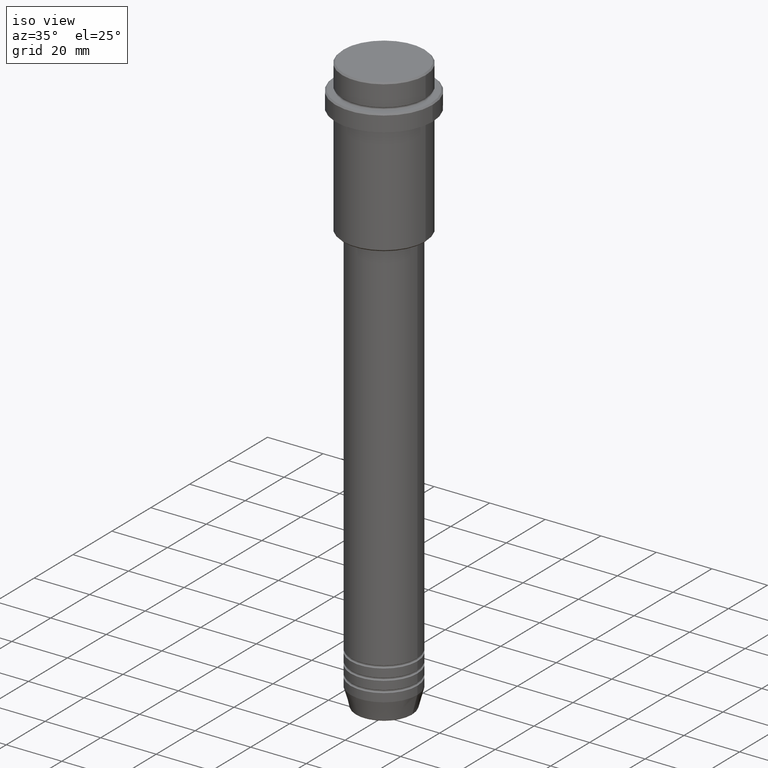
[diagram: clean part render]
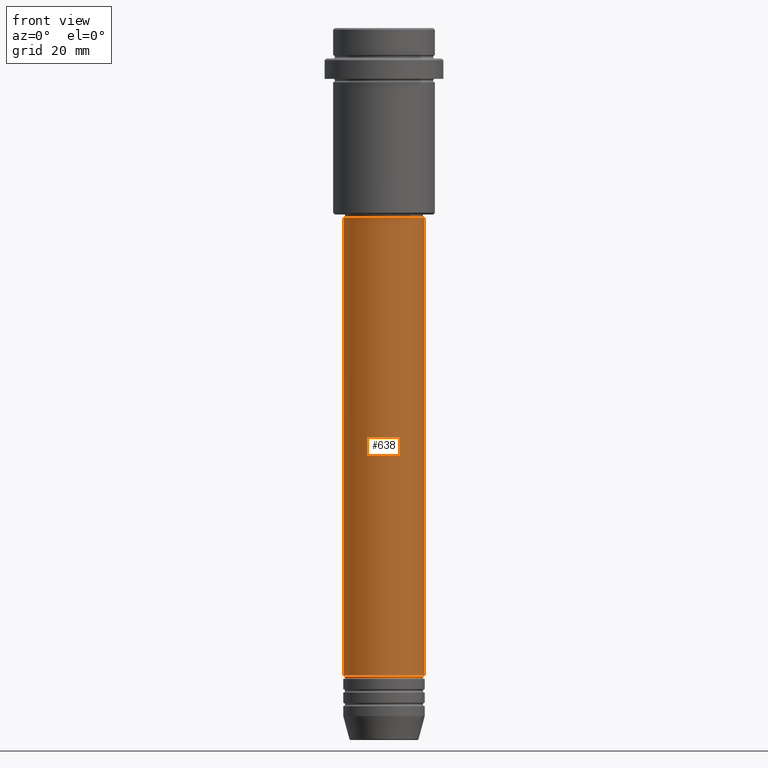
[diagram: tour spotlight — one face highlighted and labeled with its STEP entity id]
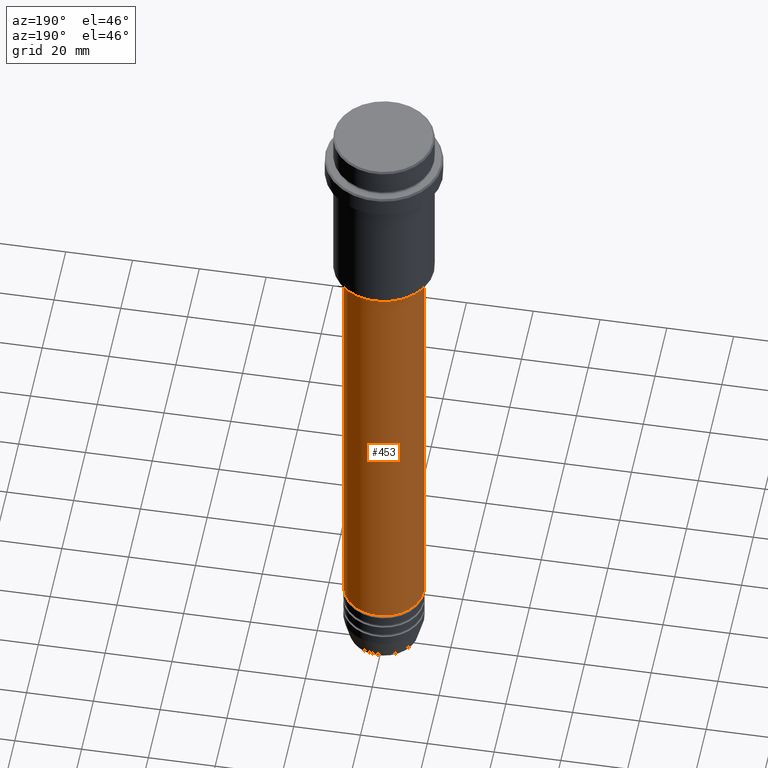
[diagram: tour spotlight — one face highlighted and labeled with its STEP entity id]
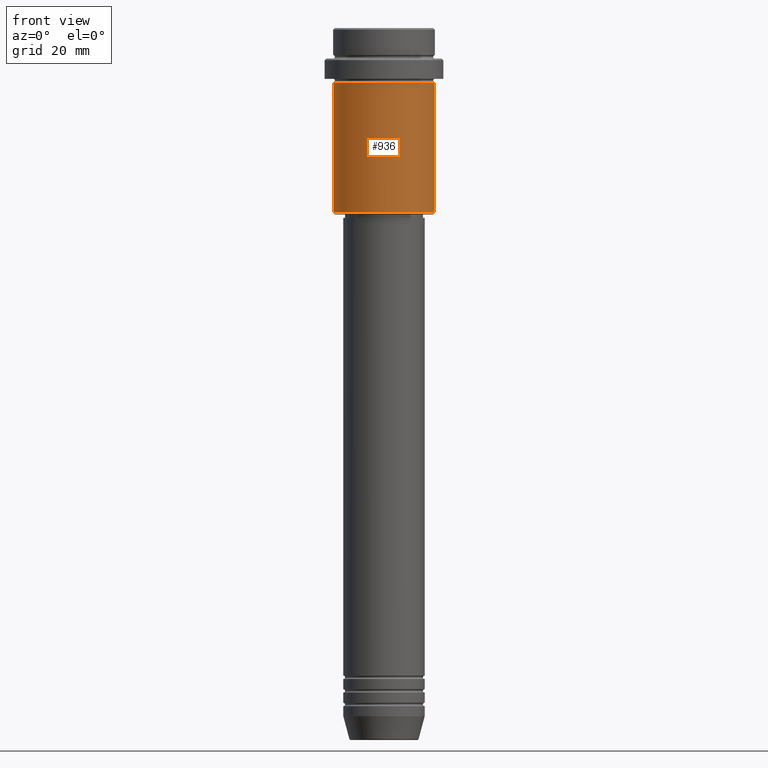
[diagram: tour spotlight — one face highlighted and labeled with its STEP entity id]
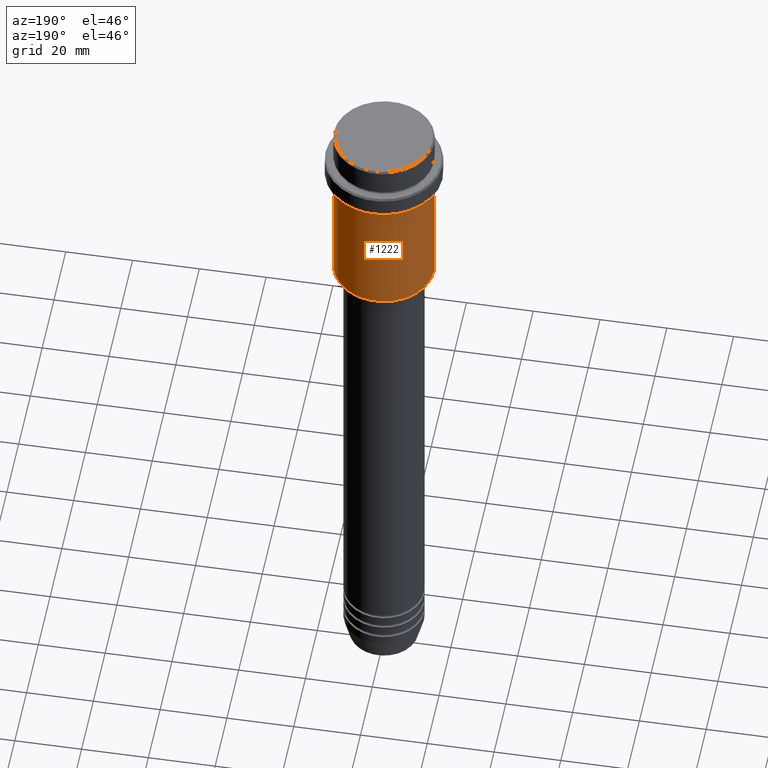
[diagram: tour spotlight — one face highlighted and labeled with its STEP entity id]
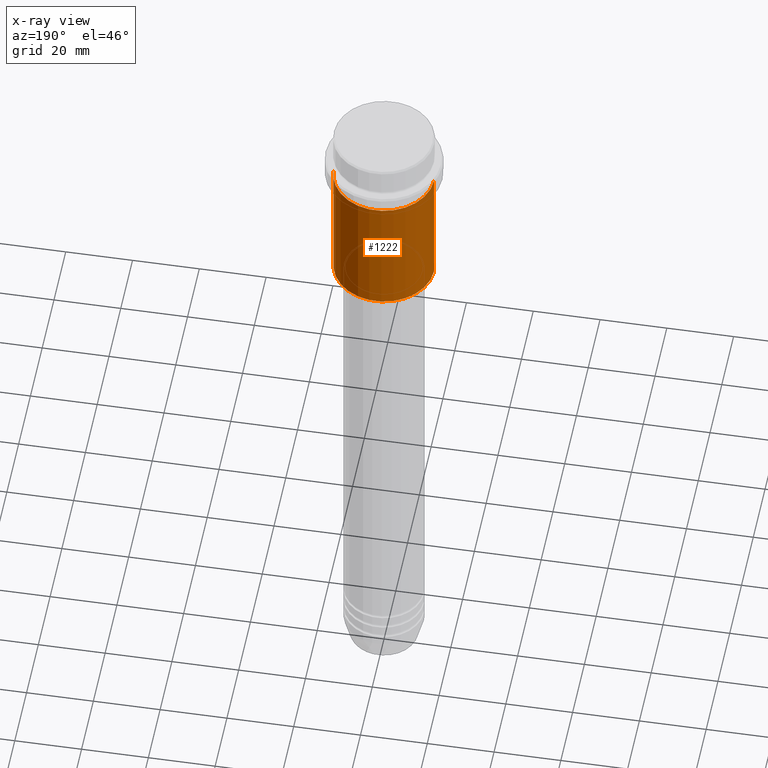
[diagram: x-ray of the same camera — body ghosted, this tour face saturated]
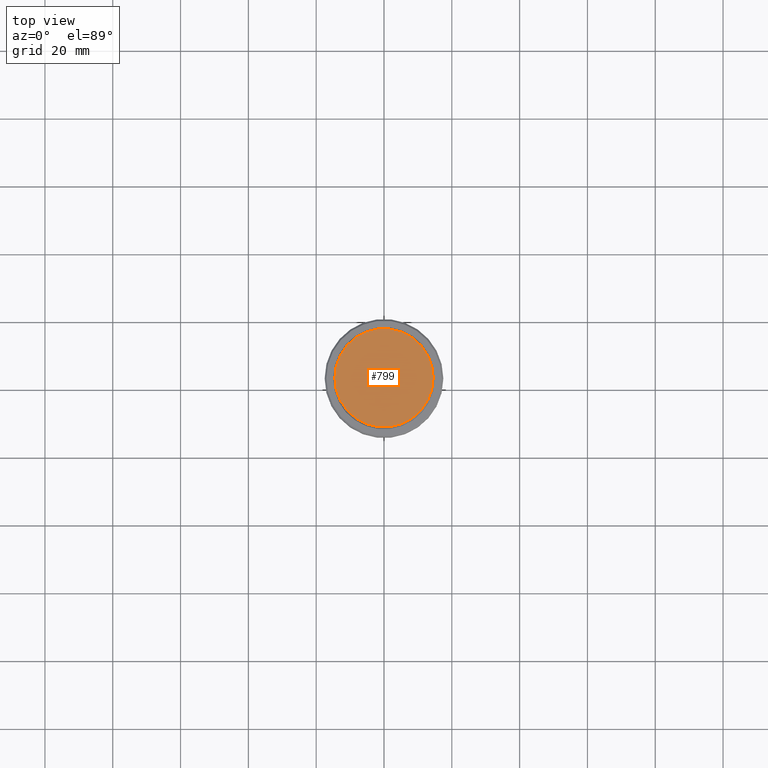
[diagram: tour spotlight — one face highlighted and labeled with its STEP entity id]
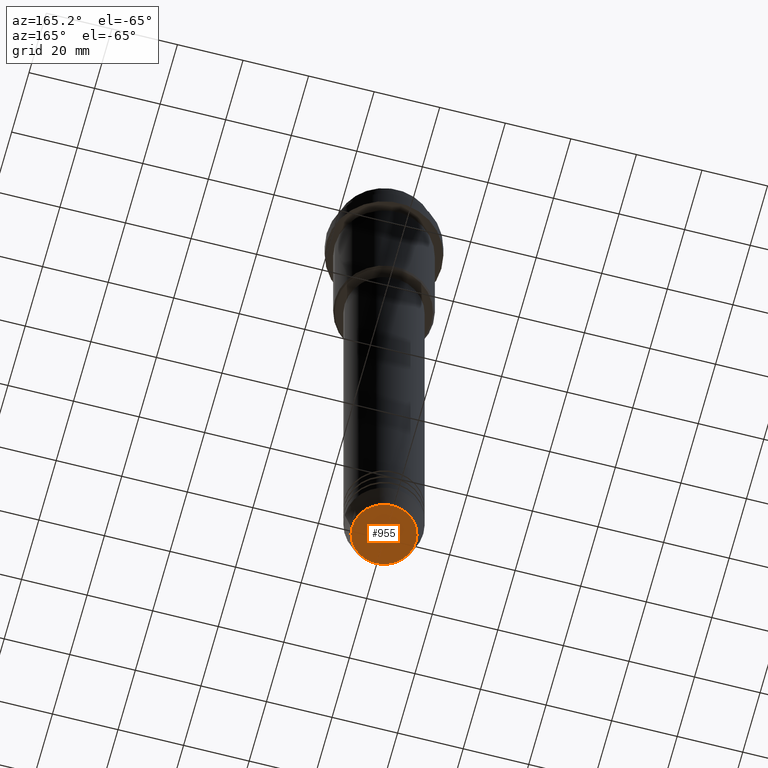
[diagram: tour spotlight — one face highlighted and labeled with its STEP entity id]
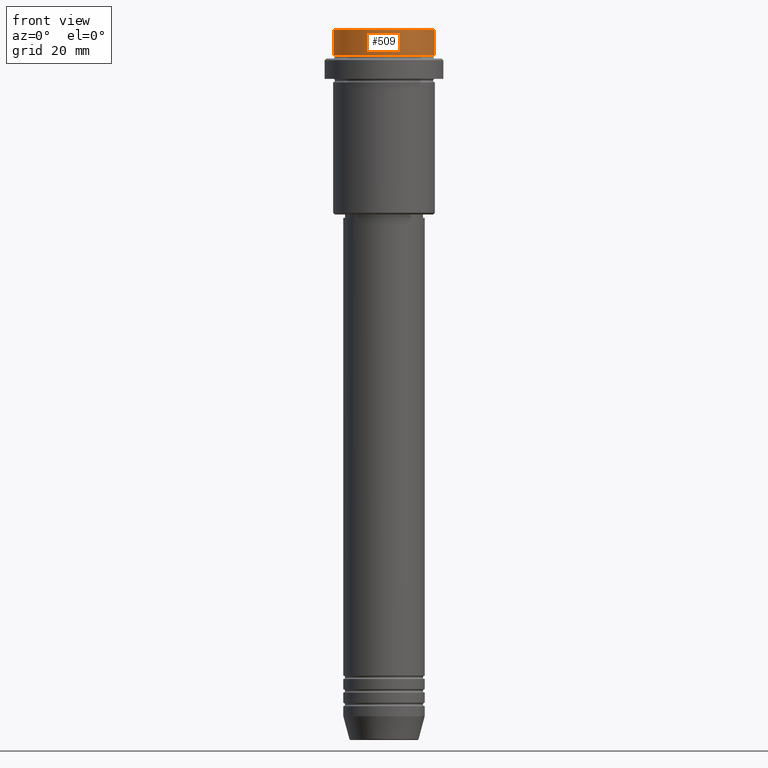
[diagram: tour spotlight — one face highlighted and labeled with its STEP entity id]
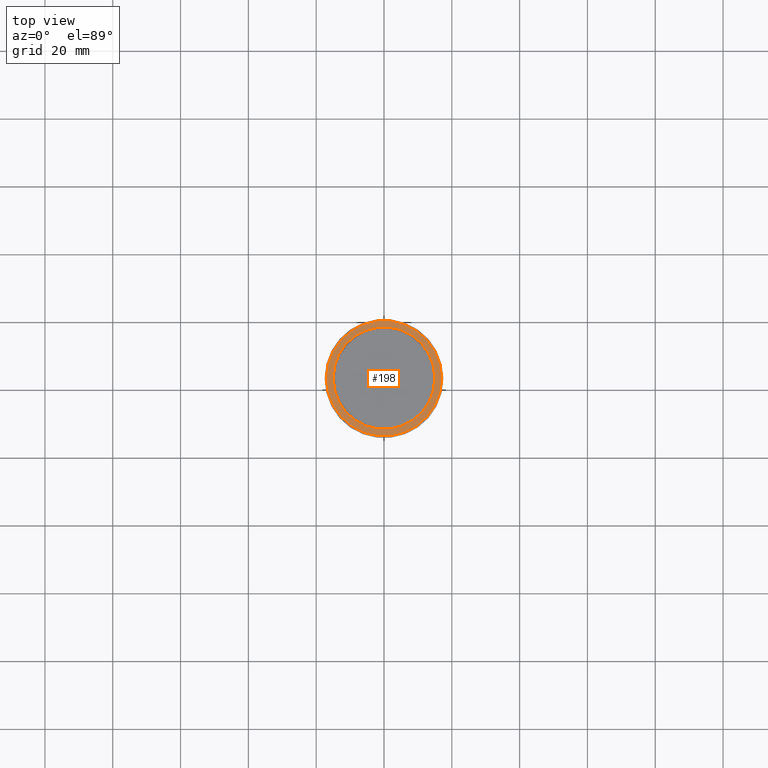
[diagram: tour spotlight — one face highlighted and labeled with its STEP entity id]
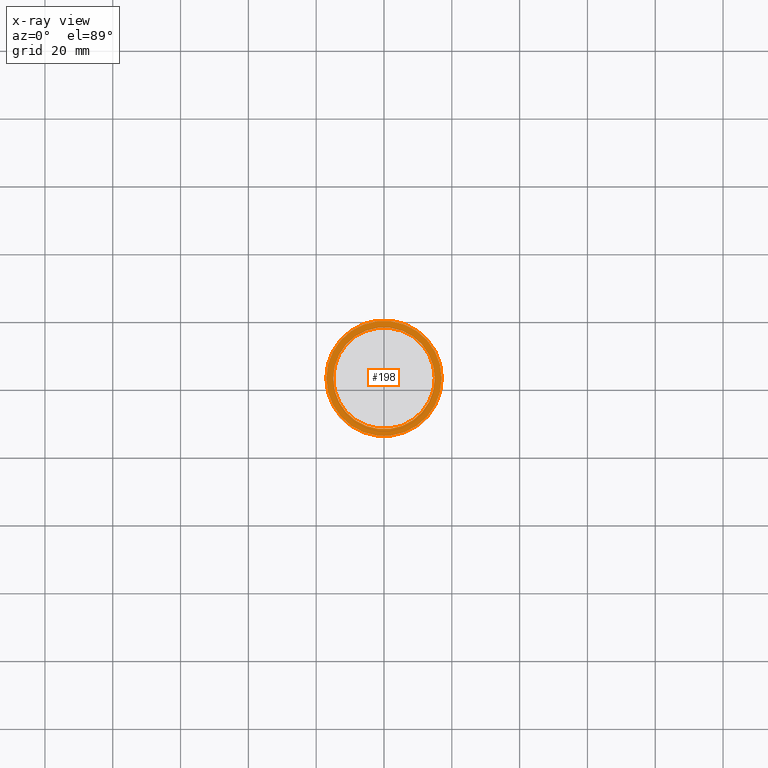
[diagram: x-ray of the same camera — body ghosted, this tour face saturated]
A machine part: a face-by-face anatomy tour. The part has 52 B-rep faces; the first image is the clean iso view, then the 8 largest visible faces are spotlighted one at a time (largest first), each with its STEP entity span.

Face 1 — front view, entity #638. In plain terms, the highlighted cylindrical surface (partial cylindrical patch) has radius 12 mm, axis along (-0, -0, 1).
Definition (entity closure, byte-faithful):
#36 = CARTESIAN_POINT ( 'NONE',  ( 11.99999999999999822, 0.000000000000000000, -56.00000000000002842 ) ) ;
#64 = LINE ( 'NONE', #93, #1137 ) ;
#93 = CARTESIAN_POINT ( 'NONE',  ( -12.00000000000000000, 1.469576158976823947E-15, 0.000000000000000000 ) ) ;
#139 = DIRECTION ( 'NONE',  ( 1.000000000000000000, 0.000000000000000000, 0.000000000000000000 ) ) ;
#150 = CIRCLE ( 'NONE', #1329, 12.00000000000000000 ) ;
#167 = LINE ( 'NONE', #1354, #212 ) ;
#185 = DIRECTION ( 'NONE',  ( -0.000000000000000000, -0.000000000000000000, 1.000000000000000000 ) ) ;
#212 = VECTOR ( 'NONE', #363, 1000.000000000000000 ) ;
#219 = DIRECTION ( 'NONE',  ( -0.000000000000000000, -0.000000000000000000, 1.000000000000000000 ) ) ;
#220 = EDGE_CURVE ( 'NONE', #373, #1388, #64, .T. ) ;
#242 = FACE_OUTER_BOUND ( 'NONE', #549, .T. ) ;
#359 = DIRECTION ( 'NONE',  ( -0.000000000000000000, -0.000000000000000000, 1.000000000000000000 ) ) ;
#363 = DIRECTION ( 'NONE',  ( -0.000000000000000000, -0.000000000000000000, 1.000000000000000000 ) ) ;
#373 = VERTEX_POINT ( 'NONE', #486 ) ;
#379 = CARTESIAN_POINT ( 'NONE',  ( 12.00000000000000000, 0.000000000000000000, -190.9999999999999147 ) ) ;
#397 = DIRECTION ( 'NONE',  ( -0.000000000000000000, -0.000000000000000000, 1.000000000000000000 ) ) ;
#402 = AXIS2_PLACEMENT_3D ( 'NONE', #683, #359, #139 ) ;
#404 = DIRECTION ( 'NONE',  ( 1.000000000000000000, 0.000000000000000000, 0.000000000000000000 ) ) ;
#411 = ORIENTED_EDGE ( 'NONE', *, *, #220, .F. ) ;
#433 = CIRCLE ( 'NONE', #806, 11.99999999999999822 ) ;
#446 = EDGE_CURVE ( 'NONE', #866, #580, #167, .T. ) ;
#486 = CARTESIAN_POINT ( 'NONE',  ( -12.00000000000000000, 1.469576158976823947E-15, -190.9999999999999147 ) ) ;
#498 = EDGE_CURVE ( 'NONE', #373, #866, #150, .T. ) ;
#547 = ORIENTED_EDGE ( 'NONE', *, *, #1228, .F. ) ;
#549 = EDGE_LOOP ( 'NONE', ( #411, #1366, #1143, #547 ) ) ;
#571 = CARTESIAN_POINT ( 'NONE',  ( -11.99999999999999822, 1.469576158976823750E-15, -56.00000000000002842 ) ) ;
#580 = VERTEX_POINT ( 'NONE', #36 ) ;
#617 = CARTESIAN_POINT ( 'NONE',  ( 0.000000000000000000, 0.000000000000000000, -190.9999999999999147 ) ) ;
#638 = ADVANCED_FACE ( 'NONE', ( #242 ), #688, .T. ) ;
#683 = CARTESIAN_POINT ( 'NONE',  ( 0.000000000000000000, 0.000000000000000000, 0.000000000000000000 ) ) ;
#688 = CYLINDRICAL_SURFACE ( 'NONE', #402, 12.00000000000000000 ) ;
#806 = AXIS2_PLACEMENT_3D ( 'NONE', #1192, #219, #404 ) ;
#866 = VERTEX_POINT ( 'NONE', #379 ) ;
#1041 = DIRECTION ( 'NONE',  ( 1.000000000000000000, 0.000000000000000000, 0.000000000000000000 ) ) ;
#1137 = VECTOR ( 'NONE', #185, 1000.000000000000000 ) ;
#1143 = ORIENTED_EDGE ( 'NONE', *, *, #446, .T. ) ;
#1192 = CARTESIAN_POINT ( 'NONE',  ( 0.000000000000000000, 0.000000000000000000, -56.00000000000002842 ) ) ;
#1228 = EDGE_CURVE ( 'NONE', #1388, #580, #433, .T. ) ;
#1329 = AXIS2_PLACEMENT_3D ( 'NONE', #617, #397, #1041 ) ;
#1354 = CARTESIAN_POINT ( 'NONE',  ( 12.00000000000000000, 0.000000000000000000, 0.000000000000000000 ) ) ;
#1366 = ORIENTED_EDGE ( 'NONE', *, *, #498, .T. ) ;
#1388 = VERTEX_POINT ( 'NONE', #571 ) ;

Face 2 — auxiliary view, entity #453. In plain terms, the highlighted cylindrical surface (partial cylindrical patch) has radius 12 mm, axis along (-0, -0, 1).
Definition (entity closure, byte-faithful):
#36 = CARTESIAN_POINT ( 'NONE',  ( 11.99999999999999822, 0.000000000000000000, -56.00000000000002842 ) ) ;
#64 = LINE ( 'NONE', #93, #1137 ) ;
#75 = ORIENTED_EDGE ( 'NONE', *, *, #184, .T. ) ;
#79 = CARTESIAN_POINT ( 'NONE',  ( 0.000000000000000000, 0.000000000000000000, -190.9999999999999147 ) ) ;
#93 = CARTESIAN_POINT ( 'NONE',  ( -12.00000000000000000, 1.469576158976823947E-15, 0.000000000000000000 ) ) ;
#102 = CIRCLE ( 'NONE', #931, 11.99999999999999822 ) ;
#167 = LINE ( 'NONE', #1354, #212 ) ;
#184 = EDGE_CURVE ( 'NONE', #866, #373, #602, .T. ) ;
#185 = DIRECTION ( 'NONE',  ( -0.000000000000000000, -0.000000000000000000, 1.000000000000000000 ) ) ;
#212 = VECTOR ( 'NONE', #363, 1000.000000000000000 ) ;
#220 = EDGE_CURVE ( 'NONE', #373, #1388, #64, .T. ) ;
#329 = CARTESIAN_POINT ( 'NONE',  ( 0.000000000000000000, 0.000000000000000000, 0.000000000000000000 ) ) ;
#363 = DIRECTION ( 'NONE',  ( -0.000000000000000000, -0.000000000000000000, 1.000000000000000000 ) ) ;
#372 = FACE_OUTER_BOUND ( 'NONE', #1130, .T. ) ;
#373 = VERTEX_POINT ( 'NONE', #486 ) ;
#375 = ORIENTED_EDGE ( 'NONE', *, *, #446, .F. ) ;
#379 = CARTESIAN_POINT ( 'NONE',  ( 12.00000000000000000, 0.000000000000000000, -190.9999999999999147 ) ) ;
#446 = EDGE_CURVE ( 'NONE', #866, #580, #167, .T. ) ;
#453 = ADVANCED_FACE ( 'NONE', ( #372 ), #604, .T. ) ;
#486 = CARTESIAN_POINT ( 'NONE',  ( -12.00000000000000000, 1.469576158976823947E-15, -190.9999999999999147 ) ) ;
#546 = DIRECTION ( 'NONE',  ( -0.000000000000000000, -0.000000000000000000, 1.000000000000000000 ) ) ;
#550 = EDGE_CURVE ( 'NONE', #580, #1388, #102, .T. ) ;
#571 = CARTESIAN_POINT ( 'NONE',  ( -11.99999999999999822, 1.469576158976823750E-15, -56.00000000000002842 ) ) ;
#580 = VERTEX_POINT ( 'NONE', #36 ) ;
#602 = CIRCLE ( 'NONE', #1259, 12.00000000000000000 ) ;
#604 = CYLINDRICAL_SURFACE ( 'NONE', #1049, 12.00000000000000000 ) ;
#616 = DIRECTION ( 'NONE',  ( -0.000000000000000000, -0.000000000000000000, 1.000000000000000000 ) ) ;
#647 = ORIENTED_EDGE ( 'NONE', *, *, #550, .F. ) ;
#819 = DIRECTION ( 'NONE',  ( 1.000000000000000000, 0.000000000000000000, 0.000000000000000000 ) ) ;
#866 = VERTEX_POINT ( 'NONE', #379 ) ;
#931 = AXIS2_PLACEMENT_3D ( 'NONE', #1084, #1333, #1349 ) ;
#1015 = ORIENTED_EDGE ( 'NONE', *, *, #220, .T. ) ;
#1049 = AXIS2_PLACEMENT_3D ( 'NONE', #329, #546, #1193 ) ;
#1084 = CARTESIAN_POINT ( 'NONE',  ( 0.000000000000000000, 0.000000000000000000, -56.00000000000002842 ) ) ;
#1130 = EDGE_LOOP ( 'NONE', ( #75, #1015, #647, #375 ) ) ;
#1137 = VECTOR ( 'NONE', #185, 1000.000000000000000 ) ;
#1193 = DIRECTION ( 'NONE',  ( 1.000000000000000000, 0.000000000000000000, 0.000000000000000000 ) ) ;
#1259 = AXIS2_PLACEMENT_3D ( 'NONE', #79, #616, #819 ) ;
#1333 = DIRECTION ( 'NONE',  ( -0.000000000000000000, -0.000000000000000000, 1.000000000000000000 ) ) ;
#1349 = DIRECTION ( 'NONE',  ( 1.000000000000000000, 0.000000000000000000, 0.000000000000000000 ) ) ;
#1354 = CARTESIAN_POINT ( 'NONE',  ( 12.00000000000000000, 0.000000000000000000, 0.000000000000000000 ) ) ;
#1388 = VERTEX_POINT ( 'NONE', #571 ) ;

Face 3 — front view, entity #936. In plain terms, the highlighted cylindrical surface (partial cylindrical patch) has radius 15 mm, axis along (-0, -0, 1).
Definition (entity closure, byte-faithful):
#15 = DIRECTION ( 'NONE',  ( -0.000000000000000000, -0.000000000000000000, 1.000000000000000000 ) ) ;
#89 = VERTEX_POINT ( 'NONE', #1172 ) ;
#124 = CARTESIAN_POINT ( 'NONE',  ( 15.00000000000000000, 0.000000000000000000, 0.000000000000000000 ) ) ;
#161 = DIRECTION ( 'NONE',  ( -0.000000000000000000, -0.000000000000000000, 1.000000000000000000 ) ) ;
#170 = CARTESIAN_POINT ( 'NONE',  ( -15.00000000000000000, 1.836970198721029589E-15, -54.50000000000001421 ) ) ;
#272 = DIRECTION ( 'NONE',  ( 1.000000000000000000, 0.000000000000000000, 0.000000000000000000 ) ) ;
#302 = VECTOR ( 'NONE', #713, 1000.000000000000000 ) ;
#316 = EDGE_CURVE ( 'NONE', #868, #752, #471, .T. ) ;
#342 = AXIS2_PLACEMENT_3D ( 'NONE', #972, #1365, #464 ) ;
#464 = DIRECTION ( 'NONE',  ( 1.000000000000000000, 0.000000000000000000, 0.000000000000000000 ) ) ;
#471 = LINE ( 'NONE', #710, #302 ) ;
#645 = ORIENTED_EDGE ( 'NONE', *, *, #1014, .T. ) ;
#655 = VECTOR ( 'NONE', #15, 1000.000000000000000 ) ;
#664 = FACE_OUTER_BOUND ( 'NONE', #1183, .T. ) ;
#701 = CIRCLE ( 'NONE', #1001, 15.00000000000000178 ) ;
#710 = CARTESIAN_POINT ( 'NONE',  ( -15.00000000000000000, 1.836970198721029589E-15, 0.000000000000000000 ) ) ;
#713 = DIRECTION ( 'NONE',  ( -0.000000000000000000, -0.000000000000000000, 1.000000000000000000 ) ) ;
#747 = EDGE_CURVE ( 'NONE', #868, #89, #760, .T. ) ;
#752 = VERTEX_POINT ( 'NONE', #924 ) ;
#760 = CIRCLE ( 'NONE', #1283, 15.00000000000000000 ) ;
#790 = EDGE_CURVE ( 'NONE', #752, #1079, #701, .T. ) ;
#815 = DIRECTION ( 'NONE',  ( -1.000000000000000000, 0.000000000000000000, 0.000000000000000000 ) ) ;
#868 = VERTEX_POINT ( 'NONE', #170 ) ;
#924 = CARTESIAN_POINT ( 'NONE',  ( -15.00000000000000355, 1.836970198721029983E-15, -16.00000000000000000 ) ) ;
#936 = ADVANCED_FACE ( 'NONE', ( #664 ), #1081, .T. ) ;
#941 = ORIENTED_EDGE ( 'NONE', *, *, #790, .F. ) ;
#971 = CARTESIAN_POINT ( 'NONE',  ( 0.000000000000000000, 0.000000000000000000, -54.50000000000001421 ) ) ;
#972 = CARTESIAN_POINT ( 'NONE',  ( 0.000000000000000000, 0.000000000000000000, 0.000000000000000000 ) ) ;
#1001 = AXIS2_PLACEMENT_3D ( 'NONE', #1131, #1250, #272 ) ;
#1014 = EDGE_CURVE ( 'NONE', #89, #1079, #1086, .T. ) ;
#1079 = VERTEX_POINT ( 'NONE', #1398 ) ;
#1081 = CYLINDRICAL_SURFACE ( 'NONE', #342, 15.00000000000000000 ) ;
#1086 = LINE ( 'NONE', #124, #655 ) ;
#1131 = CARTESIAN_POINT ( 'NONE',  ( 0.000000000000000000, 0.000000000000000000, -16.00000000000000000 ) ) ;
#1172 = CARTESIAN_POINT ( 'NONE',  ( 15.00000000000000000, 0.000000000000000000, -54.50000000000001421 ) ) ;
#1183 = EDGE_LOOP ( 'NONE', ( #1289, #1321, #645, #941 ) ) ;
#1250 = DIRECTION ( 'NONE',  ( -0.000000000000000000, -0.000000000000000000, 1.000000000000000000 ) ) ;
#1283 = AXIS2_PLACEMENT_3D ( 'NONE', #971, #161, #815 ) ;
#1289 = ORIENTED_EDGE ( 'NONE', *, *, #316, .F. ) ;
#1321 = ORIENTED_EDGE ( 'NONE', *, *, #747, .T. ) ;
#1365 = DIRECTION ( 'NONE',  ( -0.000000000000000000, -0.000000000000000000, 1.000000000000000000 ) ) ;
#1398 = CARTESIAN_POINT ( 'NONE',  ( 15.00000000000000178, 0.000000000000000000, -16.00000000000000000 ) ) ;

Face 4 — auxiliary view, entity #1222. An x-ray twin of the same camera follows (body ghosted, this face saturated) — the face is partly hidden behind the body. In plain terms, the highlighted cylindrical surface (partial cylindrical patch) has radius 15 mm, axis along (-0, -0, 1).
Definition (entity closure, byte-faithful):
#15 = DIRECTION ( 'NONE',  ( -0.000000000000000000, -0.000000000000000000, 1.000000000000000000 ) ) ;
#37 = DIRECTION ( 'NONE',  ( -0.000000000000000000, -0.000000000000000000, 1.000000000000000000 ) ) ;
#89 = VERTEX_POINT ( 'NONE', #1172 ) ;
#110 = EDGE_LOOP ( 'NONE', ( #320, #769, #398, #519 ) ) ;
#121 = CARTESIAN_POINT ( 'NONE',  ( 0.000000000000000000, 0.000000000000000000, -16.00000000000000000 ) ) ;
#123 = DIRECTION ( 'NONE',  ( -1.000000000000000000, 0.000000000000000000, 0.000000000000000000 ) ) ;
#124 = CARTESIAN_POINT ( 'NONE',  ( 15.00000000000000000, 0.000000000000000000, 0.000000000000000000 ) ) ;
#170 = CARTESIAN_POINT ( 'NONE',  ( -15.00000000000000000, 1.836970198721029589E-15, -54.50000000000001421 ) ) ;
#199 = CYLINDRICAL_SURFACE ( 'NONE', #1240, 15.00000000000000000 ) ;
#240 = CIRCLE ( 'NONE', #1146, 15.00000000000000178 ) ;
#243 = CARTESIAN_POINT ( 'NONE',  ( 0.000000000000000000, 0.000000000000000000, -54.50000000000001421 ) ) ;
#302 = VECTOR ( 'NONE', #713, 1000.000000000000000 ) ;
#316 = EDGE_CURVE ( 'NONE', #868, #752, #471, .T. ) ;
#320 = ORIENTED_EDGE ( 'NONE', *, *, #1061, .T. ) ;
#322 = CARTESIAN_POINT ( 'NONE',  ( 0.000000000000000000, 0.000000000000000000, 0.000000000000000000 ) ) ;
#398 = ORIENTED_EDGE ( 'NONE', *, *, #1280, .F. ) ;
#438 = DIRECTION ( 'NONE',  ( -0.000000000000000000, -0.000000000000000000, 1.000000000000000000 ) ) ;
#471 = LINE ( 'NONE', #710, #302 ) ;
#519 = ORIENTED_EDGE ( 'NONE', *, *, #1014, .F. ) ;
#655 = VECTOR ( 'NONE', #15, 1000.000000000000000 ) ;
#710 = CARTESIAN_POINT ( 'NONE',  ( -15.00000000000000000, 1.836970198721029589E-15, 0.000000000000000000 ) ) ;
#713 = DIRECTION ( 'NONE',  ( -0.000000000000000000, -0.000000000000000000, 1.000000000000000000 ) ) ;
#752 = VERTEX_POINT ( 'NONE', #924 ) ;
#761 = DIRECTION ( 'NONE',  ( 1.000000000000000000, 0.000000000000000000, 0.000000000000000000 ) ) ;
#769 = ORIENTED_EDGE ( 'NONE', *, *, #316, .T. ) ;
#868 = VERTEX_POINT ( 'NONE', #170 ) ;
#870 = DIRECTION ( 'NONE',  ( 1.000000000000000000, 0.000000000000000000, 0.000000000000000000 ) ) ;
#924 = CARTESIAN_POINT ( 'NONE',  ( -15.00000000000000355, 1.836970198721029983E-15, -16.00000000000000000 ) ) ;
#944 = DIRECTION ( 'NONE',  ( -0.000000000000000000, -0.000000000000000000, 1.000000000000000000 ) ) ;
#1014 = EDGE_CURVE ( 'NONE', #89, #1079, #1086, .T. ) ;
#1028 = AXIS2_PLACEMENT_3D ( 'NONE', #243, #37, #123 ) ;
#1061 = EDGE_CURVE ( 'NONE', #89, #868, #1284, .T. ) ;
#1079 = VERTEX_POINT ( 'NONE', #1398 ) ;
#1086 = LINE ( 'NONE', #124, #655 ) ;
#1146 = AXIS2_PLACEMENT_3D ( 'NONE', #121, #944, #870 ) ;
#1172 = CARTESIAN_POINT ( 'NONE',  ( 15.00000000000000000, 0.000000000000000000, -54.50000000000001421 ) ) ;
#1222 = ADVANCED_FACE ( 'NONE', ( #1310 ), #199, .T. ) ;
#1240 = AXIS2_PLACEMENT_3D ( 'NONE', #322, #438, #761 ) ;
#1280 = EDGE_CURVE ( 'NONE', #1079, #752, #240, .T. ) ;
#1284 = CIRCLE ( 'NONE', #1028, 15.00000000000000000 ) ;
#1310 = FACE_OUTER_BOUND ( 'NONE', #110, .T. ) ;
#1398 = CARTESIAN_POINT ( 'NONE',  ( 15.00000000000000178, 0.000000000000000000, -16.00000000000000000 ) ) ;

Face 5 — top view, entity #799. In plain terms, the highlighted planar face has unit normal (0, -0, 1).
Definition (entity closure, byte-faithful):
#57 = AXIS2_PLACEMENT_3D ( 'NONE', #505, #1065, #857 ) ;
#74 = ORIENTED_EDGE ( 'NONE', *, *, #1235, .T. ) ;
#130 = CIRCLE ( 'NONE', #911, 14.49999999999998401 ) ;
#267 = CARTESIAN_POINT ( 'NONE',  ( 14.49999999999998401, 1.806354028742345013E-15, 0.000000000000000000 ) ) ;
#279 = DIRECTION ( 'NONE',  ( 0.000000000000000000, -0.000000000000000000, 1.000000000000000000 ) ) ;
#301 = EDGE_LOOP ( 'NONE', ( #74, #1342 ) ) ;
#319 = VERTEX_POINT ( 'NONE', #267 ) ;
#462 = PLANE ( 'NONE',  #1406 ) ;
#505 = CARTESIAN_POINT ( 'NONE',  ( 0.000000000000000000, 0.000000000000000000, 0.000000000000000000 ) ) ;
#639 = DIRECTION ( 'NONE',  ( 1.000000000000000000, 0.000000000000000000, 0.000000000000000000 ) ) ;
#674 = CARTESIAN_POINT ( 'NONE',  ( -14.49999999999998401, 0.000000000000000000, 0.000000000000000000 ) ) ;
#799 = ADVANCED_FACE ( 'NONE', ( #1368 ), #462, .T. ) ;
#857 = DIRECTION ( 'NONE',  ( 1.000000000000000000, 0.000000000000000000, 0.000000000000000000 ) ) ;
#865 = CIRCLE ( 'NONE', #57, 14.49999999999998401 ) ;
#911 = AXIS2_PLACEMENT_3D ( 'NONE', #952, #968, #639 ) ;
#952 = CARTESIAN_POINT ( 'NONE',  ( 0.000000000000000000, 0.000000000000000000, 0.000000000000000000 ) ) ;
#968 = DIRECTION ( 'NONE',  ( -0.000000000000000000, -0.000000000000000000, 1.000000000000000000 ) ) ;
#970 = VERTEX_POINT ( 'NONE', #674 ) ;
#1039 = EDGE_CURVE ( 'NONE', #319, #970, #865, .T. ) ;
#1065 = DIRECTION ( 'NONE',  ( -0.000000000000000000, -0.000000000000000000, 1.000000000000000000 ) ) ;
#1224 = DIRECTION ( 'NONE',  ( 1.000000000000000000, 0.000000000000000000, 0.000000000000000000 ) ) ;
#1235 = EDGE_CURVE ( 'NONE', #970, #319, #130, .T. ) ;
#1256 = CARTESIAN_POINT ( 'NONE',  ( 0.000000000000000000, 0.000000000000000000, 0.000000000000000000 ) ) ;
#1342 = ORIENTED_EDGE ( 'NONE', *, *, #1039, .T. ) ;
#1368 = FACE_OUTER_BOUND ( 'NONE', #301, .T. ) ;
#1406 = AXIS2_PLACEMENT_3D ( 'NONE', #1256, #279, #1224 ) ;

Face 6 — auxiliary view, entity #955. In plain terms, the highlighted planar face has unit normal (0, -0, 1).
Definition (entity closure, byte-faithful):
#34 = CIRCLE ( 'NONE', #527, 9.740692158992658278 ) ;
#94 = CARTESIAN_POINT ( 'NONE',  ( 0.000000000000000000, 0.000000000000000000, -210.0000000000000284 ) ) ;
#180 = FACE_OUTER_BOUND ( 'NONE', #456, .T. ) ;
#237 = EDGE_CURVE ( 'NONE', #1178, #1305, #552, .T. ) ;
#378 = ORIENTED_EDGE ( 'NONE', *, *, #237, .T. ) ;
#400 = DIRECTION ( 'NONE',  ( 1.000000000000000000, 0.000000000000000000, 0.000000000000000000 ) ) ;
#428 = AXIS2_PLACEMENT_3D ( 'NONE', #510, #940, #400 ) ;
#456 = EDGE_LOOP ( 'NONE', ( #858, #378 ) ) ;
#507 = DIRECTION ( 'NONE',  ( 0.000000000000000000, -0.000000000000000000, 1.000000000000000000 ) ) ;
#510 = CARTESIAN_POINT ( 'NONE',  ( 0.000000000000000000, 0.000000000000000000, -210.0000000000000284 ) ) ;
#527 = AXIS2_PLACEMENT_3D ( 'NONE', #561, #1201, #1085 ) ;
#552 = CIRCLE ( 'NONE', #428, 9.740692158992658278 ) ;
#561 = CARTESIAN_POINT ( 'NONE',  ( 0.000000000000000000, 0.000000000000000000, -210.0000000000000284 ) ) ;
#635 = PLANE ( 'NONE',  #1025 ) ;
#652 = CARTESIAN_POINT ( 'NONE',  ( 9.740692158992658278, 0.000000000000000000, -210.0000000000000284 ) ) ;
#858 = ORIENTED_EDGE ( 'NONE', *, *, #1058, .T. ) ;
#940 = DIRECTION ( 'NONE',  ( 0.000000000000000000, 0.000000000000000000, -1.000000000000000000 ) ) ;
#955 = ADVANCED_FACE ( 'NONE', ( #180 ), #635, .F. ) ;
#1025 = AXIS2_PLACEMENT_3D ( 'NONE', #94, #507, #1139 ) ;
#1058 = EDGE_CURVE ( 'NONE', #1305, #1178, #34, .T. ) ;
#1064 = CARTESIAN_POINT ( 'NONE',  ( -9.740692158992658278, 1.222463696683474999E-15, -210.0000000000000284 ) ) ;
#1085 = DIRECTION ( 'NONE',  ( 1.000000000000000000, 0.000000000000000000, 0.000000000000000000 ) ) ;
#1139 = DIRECTION ( 'NONE',  ( 1.000000000000000000, 0.000000000000000000, 0.000000000000000000 ) ) ;
#1178 = VERTEX_POINT ( 'NONE', #1064 ) ;
#1201 = DIRECTION ( 'NONE',  ( 0.000000000000000000, 0.000000000000000000, -1.000000000000000000 ) ) ;
#1305 = VERTEX_POINT ( 'NONE', #652 ) ;

Face 7 — front view, entity #509. In plain terms, the highlighted cylindrical surface (partial cylindrical patch) has radius 15 mm, axis along (-0, -0, 1).
Definition (entity closure, byte-faithful):
#73 = FACE_OUTER_BOUND ( 'NONE', #935, .T. ) ;
#158 = VERTEX_POINT ( 'NONE', #750 ) ;
#179 = DIRECTION ( 'NONE',  ( 0.000000000000000000, 0.000000000000000000, -1.000000000000000000 ) ) ;
#203 = VERTEX_POINT ( 'NONE', #290 ) ;
#205 = ORIENTED_EDGE ( 'NONE', *, *, #697, .T. ) ;
#210 = CARTESIAN_POINT ( 'NONE',  ( 0.000000000000000000, 0.000000000000000000, 0.000000000000000000 ) ) ;
#236 = ORIENTED_EDGE ( 'NONE', *, *, #1380, .F. ) ;
#268 = ORIENTED_EDGE ( 'NONE', *, *, #466, .T. ) ;
#290 = CARTESIAN_POINT ( 'NONE',  ( -15.00000000000000000, 1.836970198721029589E-15, -7.999999999999998224 ) ) ;
#324 = AXIS2_PLACEMENT_3D ( 'NONE', #1185, #1167, #517 ) ;
#365 = AXIS2_PLACEMENT_3D ( 'NONE', #210, #653, #537 ) ;
#383 = CARTESIAN_POINT ( 'NONE',  ( 15.00000000000000000, 0.000000000000000000, -7.999999999999998224 ) ) ;
#413 = LINE ( 'NONE', #844, #528 ) ;
#466 = EDGE_CURVE ( 'NONE', #1140, #158, #627, .T. ) ;
#479 = VERTEX_POINT ( 'NONE', #383 ) ;
#509 = ADVANCED_FACE ( 'NONE', ( #73 ), #738, .T. ) ;
#517 = DIRECTION ( 'NONE',  ( 1.000000000000000000, 0.000000000000000000, 0.000000000000000000 ) ) ;
#528 = VECTOR ( 'NONE', #1181, 1000.000000000000000 ) ;
#537 = DIRECTION ( 'NONE',  ( 1.000000000000000000, 0.000000000000000000, 0.000000000000000000 ) ) ;
#627 = CIRCLE ( 'NONE', #1163, 15.00000000000000000 ) ;
#653 = DIRECTION ( 'NONE',  ( -0.000000000000000000, -0.000000000000000000, 1.000000000000000000 ) ) ;
#682 = CARTESIAN_POINT ( 'NONE',  ( -15.00000000000000000, 1.836970198721029589E-15, 0.000000000000000000 ) ) ;
#697 = EDGE_CURVE ( 'NONE', #203, #479, #1189, .T. ) ;
#727 = DIRECTION ( 'NONE',  ( 1.000000000000000000, 0.000000000000000000, 0.000000000000000000 ) ) ;
#738 = CYLINDRICAL_SURFACE ( 'NONE', #365, 15.00000000000000000 ) ;
#750 = CARTESIAN_POINT ( 'NONE',  ( -15.00000000000000000, 1.836970198721029589E-15, -0.5000000000000108802 ) ) ;
#798 = LINE ( 'NONE', #682, #845 ) ;
#844 = CARTESIAN_POINT ( 'NONE',  ( 15.00000000000000000, 0.000000000000000000, 0.000000000000000000 ) ) ;
#845 = VECTOR ( 'NONE', #1316, 1000.000000000000000 ) ;
#935 = EDGE_LOOP ( 'NONE', ( #236, #205, #996, #268 ) ) ;
#969 = CARTESIAN_POINT ( 'NONE',  ( 0.000000000000000000, 0.000000000000000000, -0.5000000000000108802 ) ) ;
#996 = ORIENTED_EDGE ( 'NONE', *, *, #1268, .T. ) ;
#1140 = VERTEX_POINT ( 'NONE', #1237 ) ;
#1163 = AXIS2_PLACEMENT_3D ( 'NONE', #969, #179, #727 ) ;
#1167 = DIRECTION ( 'NONE',  ( -0.000000000000000000, -0.000000000000000000, 1.000000000000000000 ) ) ;
#1181 = DIRECTION ( 'NONE',  ( -0.000000000000000000, -0.000000000000000000, 1.000000000000000000 ) ) ;
#1185 = CARTESIAN_POINT ( 'NONE',  ( 0.000000000000000000, 0.000000000000000000, -7.999999999999998224 ) ) ;
#1189 = CIRCLE ( 'NONE', #324, 15.00000000000000000 ) ;
#1237 = CARTESIAN_POINT ( 'NONE',  ( 15.00000000000000000, 0.000000000000000000, -0.5000000000000108802 ) ) ;
#1268 = EDGE_CURVE ( 'NONE', #479, #1140, #413, .T. ) ;
#1316 = DIRECTION ( 'NONE',  ( -0.000000000000000000, -0.000000000000000000, 1.000000000000000000 ) ) ;
#1380 = EDGE_CURVE ( 'NONE', #203, #158, #798, .T. ) ;

Face 8 — top view, entity #198. An x-ray twin of the same camera follows (body ghosted, this face saturated) — the face is partly hidden behind the body. In plain terms, the highlighted planar face has unit normal (0, -0, 1).
Definition (entity closure, byte-faithful):
#11 = CIRCLE ( 'NONE', #843, 14.99999999999999467 ) ;
#12 = DIRECTION ( 'NONE',  ( 1.000000000000000000, 0.000000000000000000, 0.000000000000000000 ) ) ;
#33 = AXIS2_PLACEMENT_3D ( 'NONE', #487, #810, #168 ) ;
#76 = CIRCLE ( 'NONE', #1403, 16.99999999999998579 ) ;
#90 = VERTEX_POINT ( 'NONE', #1395 ) ;
#97 = ORIENTED_EDGE ( 'NONE', *, *, #946, .T. ) ;
#114 = EDGE_CURVE ( 'NONE', #1282, #877, #76, .T. ) ;
#126 = AXIS2_PLACEMENT_3D ( 'NONE', #945, #828, #745 ) ;
#140 = EDGE_LOOP ( 'NONE', ( #97, #1385 ) ) ;
#168 = DIRECTION ( 'NONE',  ( 1.000000000000000000, 0.000000000000000000, 0.000000000000000000 ) ) ;
#198 = ADVANCED_FACE ( 'NONE', ( #837, #305 ), #833, .T. ) ;
#217 = VERTEX_POINT ( 'NONE', #725 ) ;
#259 = DIRECTION ( 'NONE',  ( -0.000000000000000000, -0.000000000000000000, 1.000000000000000000 ) ) ;
#298 = DIRECTION ( 'NONE',  ( 1.000000000000000000, 0.000000000000000000, 0.000000000000000000 ) ) ;
#304 = CARTESIAN_POINT ( 'NONE',  ( 16.99999999999998579, 2.112515728529183278E-15, -9.000000000000001776 ) ) ;
#305 = FACE_BOUND ( 'NONE', #140, .T. ) ;
#350 = DIRECTION ( 'NONE',  ( 1.000000000000000000, 0.000000000000000000, 0.000000000000000000 ) ) ;
#417 = EDGE_CURVE ( 'NONE', #877, #1282, #500, .T. ) ;
#487 = CARTESIAN_POINT ( 'NONE',  ( 0.000000000000000000, 0.000000000000000000, -9.000000000000001776 ) ) ;
#500 = CIRCLE ( 'NONE', #1381, 16.99999999999998579 ) ;
#588 = ORIENTED_EDGE ( 'NONE', *, *, #417, .T. ) ;
#651 = CIRCLE ( 'NONE', #33, 14.99999999999999467 ) ;
#725 = CARTESIAN_POINT ( 'NONE',  ( -14.99999999999999467, 1.836970198721029194E-15, -9.000000000000001776 ) ) ;
#734 = ORIENTED_EDGE ( 'NONE', *, *, #114, .T. ) ;
#745 = DIRECTION ( 'NONE',  ( 1.000000000000000000, 0.000000000000000000, 0.000000000000000000 ) ) ;
#810 = DIRECTION ( 'NONE',  ( 0.000000000000000000, 0.000000000000000000, -1.000000000000000000 ) ) ;
#828 = DIRECTION ( 'NONE',  ( 0.000000000000000000, -0.000000000000000000, 1.000000000000000000 ) ) ;
#833 = PLANE ( 'NONE',  #126 ) ;
#837 = FACE_OUTER_BOUND ( 'NONE', #1089, .T. ) ;
#843 = AXIS2_PLACEMENT_3D ( 'NONE', #1400, #978, #12 ) ;
#877 = VERTEX_POINT ( 'NONE', #1104 ) ;
#889 = CARTESIAN_POINT ( 'NONE',  ( 0.000000000000000000, 0.000000000000000000, -9.000000000000001776 ) ) ;
#945 = CARTESIAN_POINT ( 'NONE',  ( 0.000000000000000000, 14.49999999999999467, -9.000000000000001776 ) ) ;
#946 = EDGE_CURVE ( 'NONE', #90, #217, #651, .T. ) ;
#978 = DIRECTION ( 'NONE',  ( 0.000000000000000000, 0.000000000000000000, -1.000000000000000000 ) ) ;
#1056 = DIRECTION ( 'NONE',  ( -0.000000000000000000, -0.000000000000000000, 1.000000000000000000 ) ) ;
#1089 = EDGE_LOOP ( 'NONE', ( #588, #734 ) ) ;
#1104 = CARTESIAN_POINT ( 'NONE',  ( -16.99999999999998579, 0.000000000000000000, -9.000000000000001776 ) ) ;
#1194 = EDGE_CURVE ( 'NONE', #217, #90, #11, .T. ) ;
#1261 = CARTESIAN_POINT ( 'NONE',  ( 0.000000000000000000, 0.000000000000000000, -9.000000000000001776 ) ) ;
#1282 = VERTEX_POINT ( 'NONE', #304 ) ;
#1381 = AXIS2_PLACEMENT_3D ( 'NONE', #889, #259, #350 ) ;
#1385 = ORIENTED_EDGE ( 'NONE', *, *, #1194, .T. ) ;
#1395 = CARTESIAN_POINT ( 'NONE',  ( 14.99999999999999467, 0.000000000000000000, -9.000000000000001776 ) ) ;
#1400 = CARTESIAN_POINT ( 'NONE',  ( 0.000000000000000000, 0.000000000000000000, -9.000000000000001776 ) ) ;
#1403 = AXIS2_PLACEMENT_3D ( 'NONE', #1261, #1056, #298 ) ;